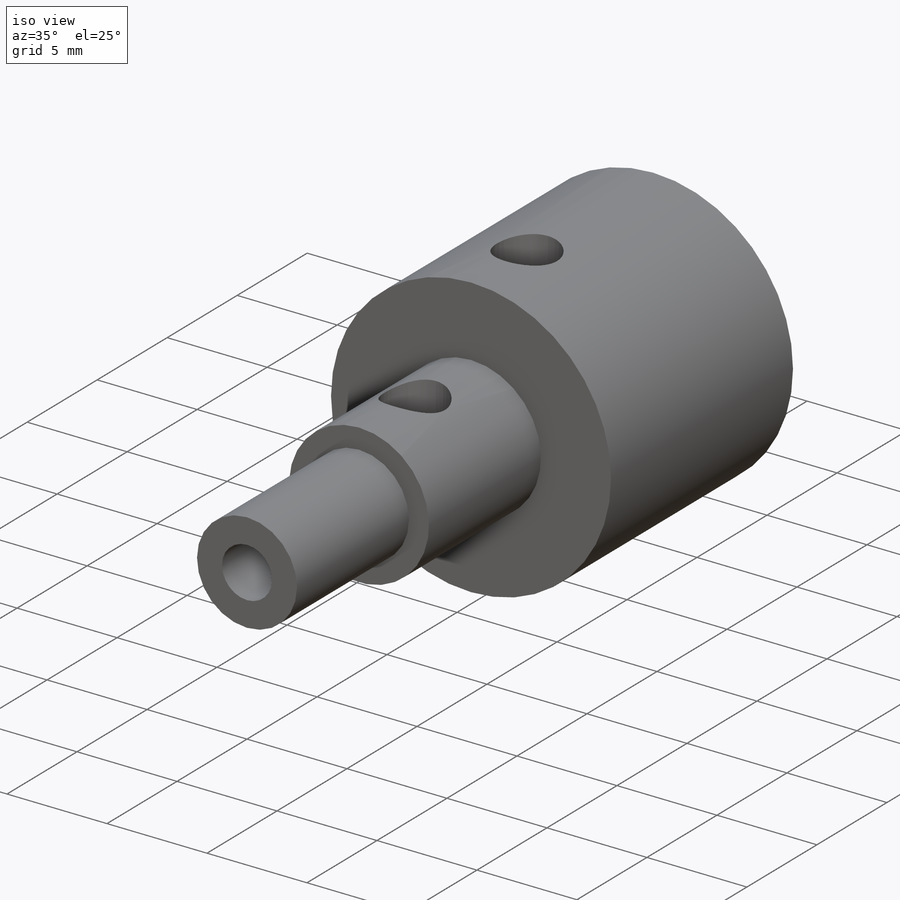
[diagram: iso view]
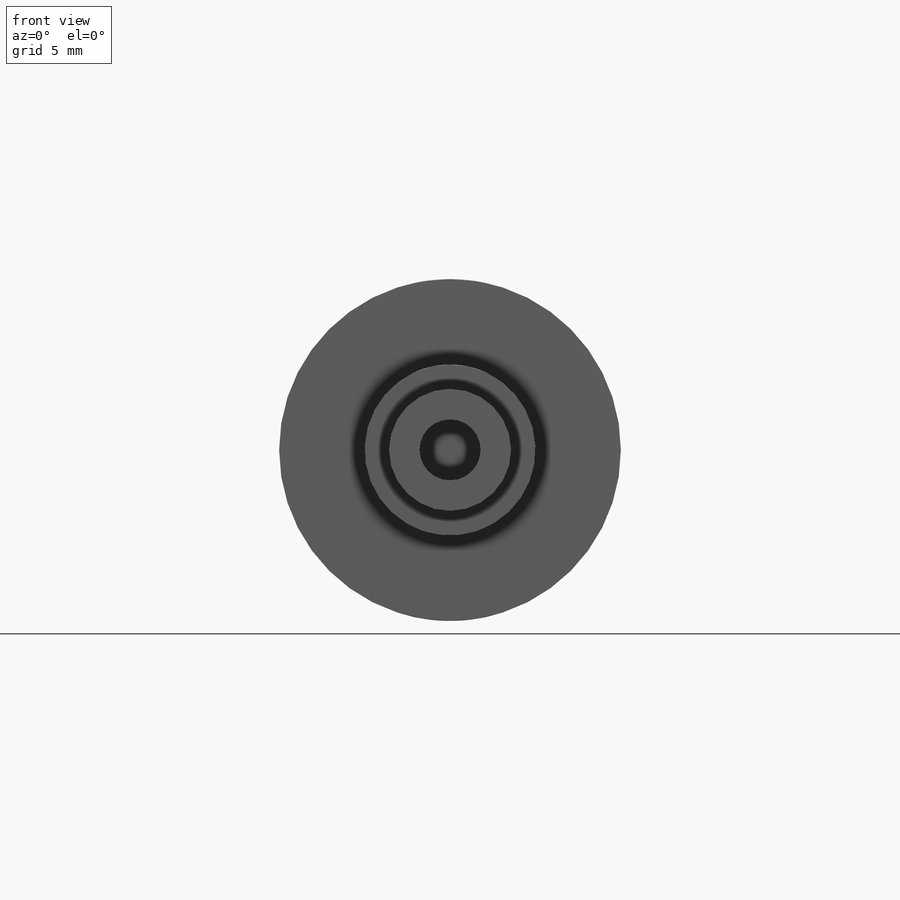
[diagram: front view]
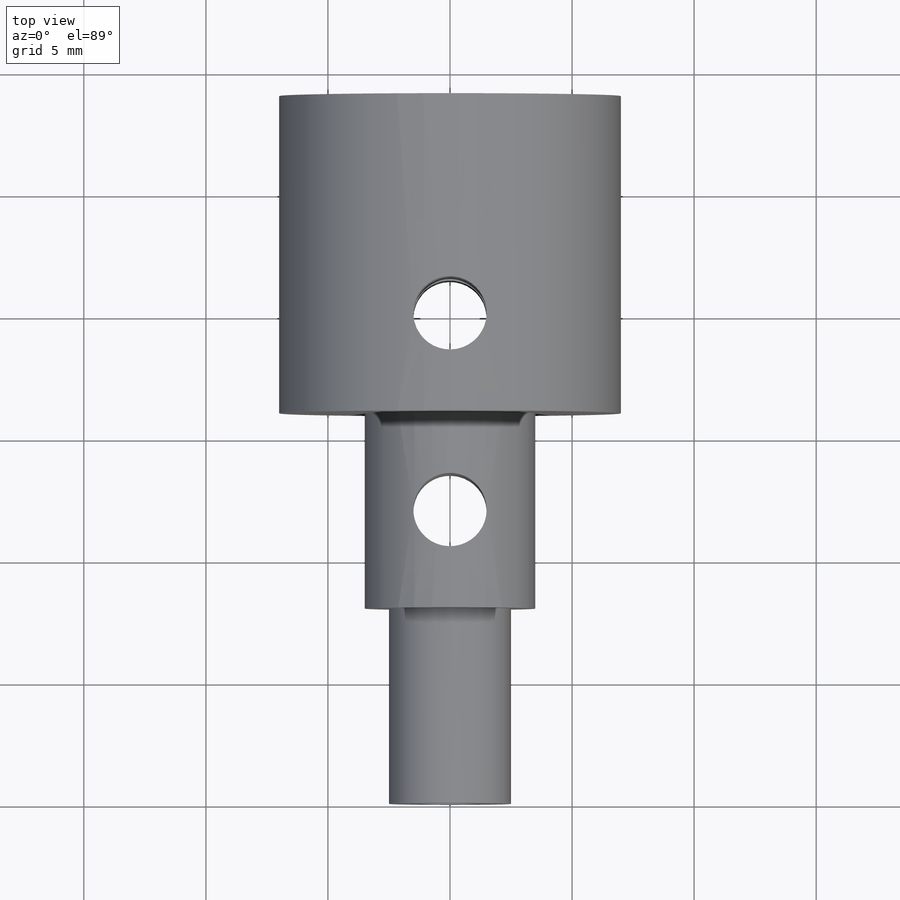
[diagram: top view]
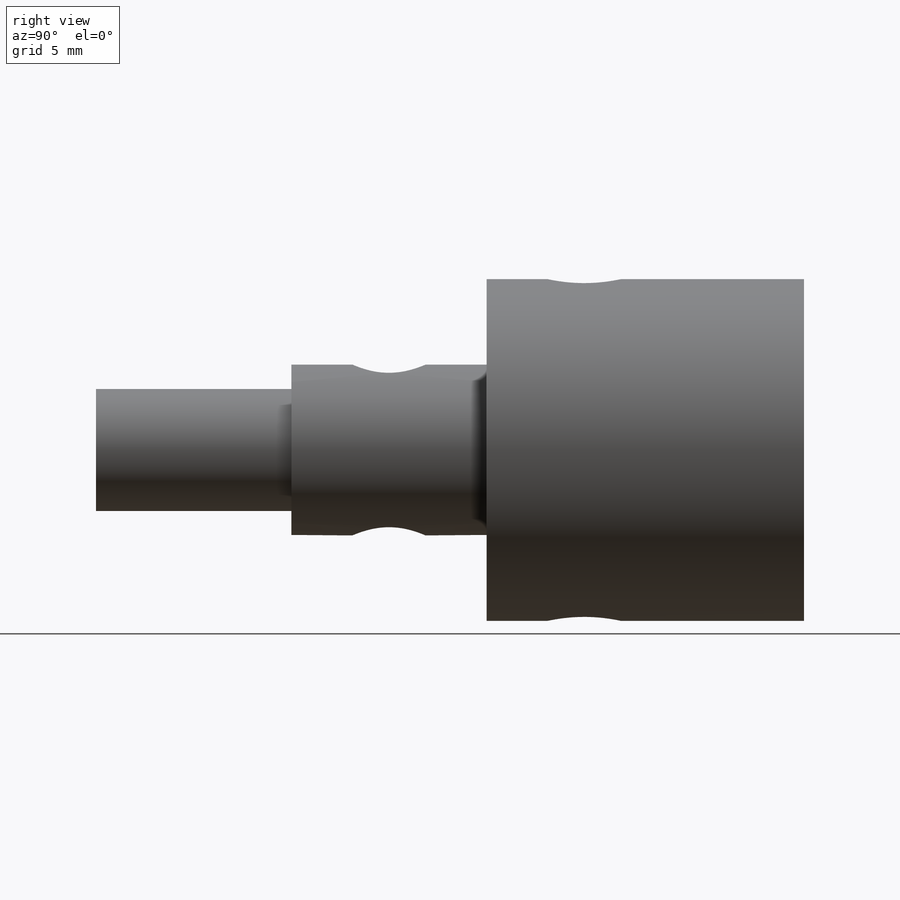
[diagram: right view]
SOLIDWORKS PART (.sldprt)
format: sldprt  version: not decoded by parser v0  size: 219,136 bytes
history: native  units: mm
features: sketch x3, cut_extrude x2, material x1, revolve x1 (+11 scaffold rows collapsed)
feature tree (18):
  scaffold x11  (default folders/planes/origin — collapsed)
  material  "1060 Alloy"
  sketch  "Sketch1"  dims[c1.D1=4.0mm c1.D2=20.0mm c1.D3=5.0mm c1.D4=5.0mm c1.D5=13.0mm c1.D6=7.0mm c2.D3=3.2mm c2.D4=2.5mm c2.D7=3.5mm c3.D7=121.0deg c3.D1=8.0mm c3.D2=4.0mm c3.D8=3.5mm c3.D9=4.0mm c4.D1=8.0mm c4.D2=4.0mm c4.D9=4.0mm c5.D1=2.5mm c5.D2=8.0mm c5.D9=8.0mm]
  revolve  "Revolve1"  Angle=360deg
  sketch  "Sketch2"  dims[D2=3.0mm D3=3.0mm D1=4.0mm D4=4.0mm]
  cut_extrude  "Cut-Extrude1"  [1 undecoded]
  sketch  "Sketch4"  dims[D1=2.5mm]
  cut_extrude  "Cut-Extrude2"  Depth=10mm
decode coverage: 5 of 6 modeling features carry decoded parameters
note: 1 parameter value undecoded
note: suppression state not decoded; provenance and decode notes live in map.json
